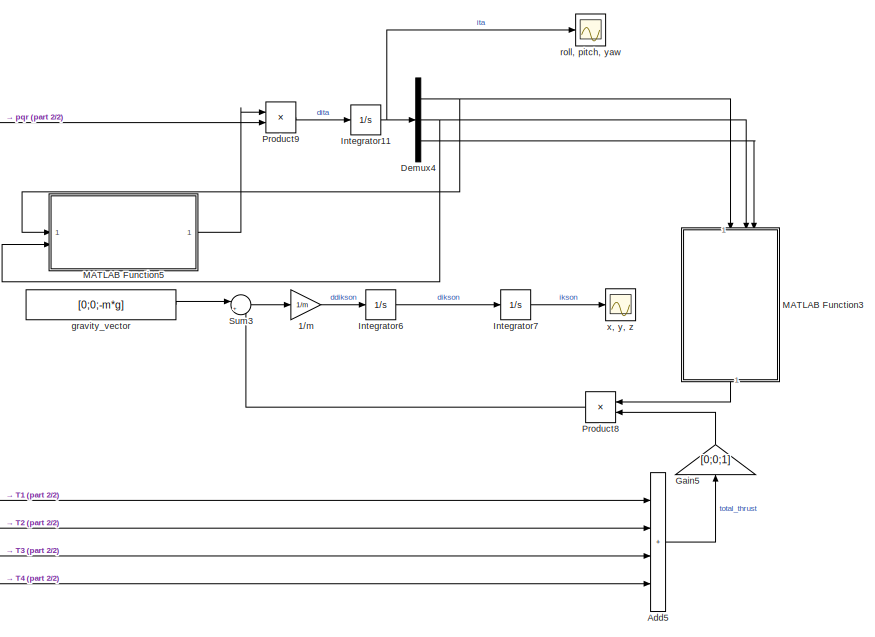
[diagram: root canvas - part 1/2, right side, full height]
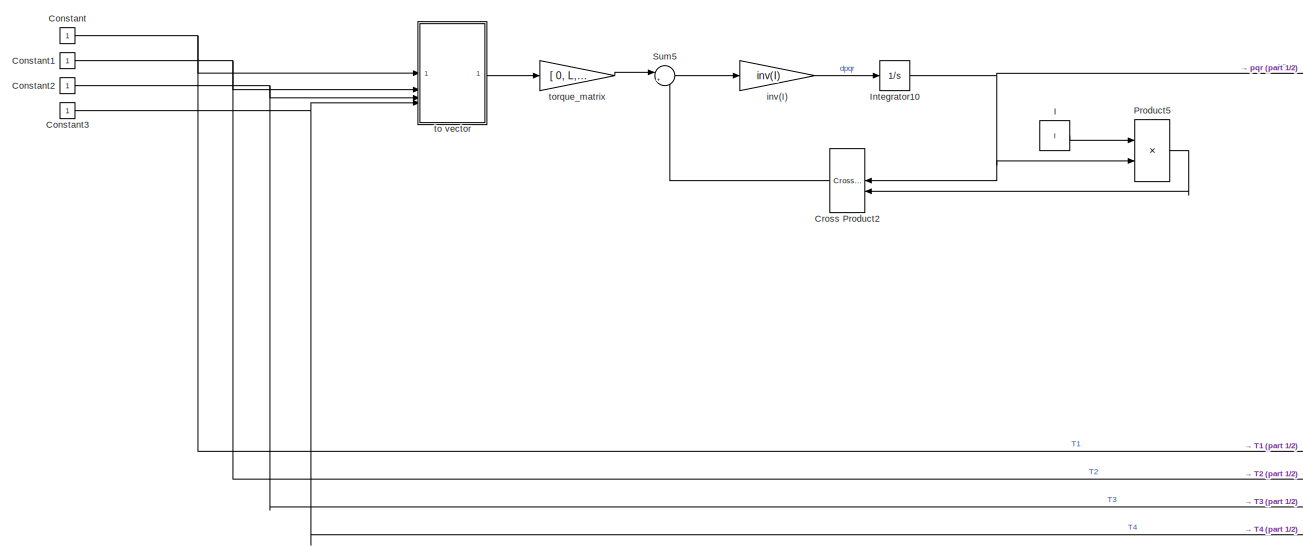
[diagram: root canvas - part 2/2, left side, full height]
MODEL slx_aa3438f0dcc6
KIND model
CONFIG AbsTol = auto
CONFIG EnableMultiTasking = off
CONFIG FixedStep = auto
CONFIG MaxStep = auto
CONFIG MinStep = auto
CONFIG RelTol = 1e-3
CONFIG SampleTimeConstraint = Unconstrained
CONFIG SolverName = VariableStepAuto
CONFIG StartTime = 0.0
CONFIG StopTime = 10
BLOCK [Gain] 1//m
  Gain = 1/m
BLOCK [Sum] Add5
  IconShape = rectangular
  Inputs = ++++
BLOCK [Constant] Constant
BLOCK [Constant] Constant1
BLOCK [Constant] Constant2
BLOCK [Constant] Constant3
BLOCK [Reference] Cross Product2  REF=vrlib/Utilities/Cross Product
  SourceBlock = vrlib/Utilities/Cross Product
  SourceType = Cross Product
BLOCK [Demux] Demux4
  Outputs = 3
BLOCK [Gain] Gain5
  Gain = [0;0;1]
  NameLocation = right
BLOCK [Constant] I
  NameLocation = top
  Value = I
BLOCK [Integrator] Integrator10
BLOCK [Integrator] Integrator11
BLOCK [Integrator] Integrator6
BLOCK [Integrator] Integrator7
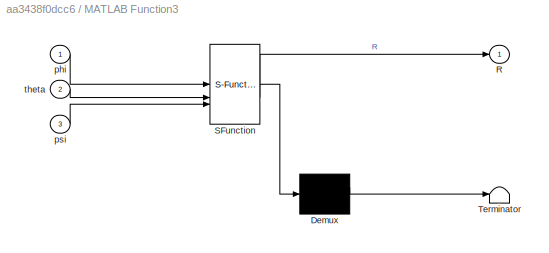
BLOCK [SubSystem] MATLAB Function3
  ErrorFcn = Stateflow.Translate.translate
  NameLocation = left
  PermitHierarchicalResolution = ExplicitOnly
  SFBlockType = MATLAB Function
  TreatAsAtomicUnit = on
BLOCK [Demux] MATLAB Function3/ Demux 
  Outputs = 1
BLOCK [S-Function] MATLAB Function3/ SFunction 
  EnableBusSupport = on
  FunctionName = sf_sfun
  PortCounts = [3 2]
  SFcnIsStateOwnerBlock = off
  SFunctionDeploymentMode = off
  Tag = Stateflow S-Function 4
BLOCK [Terminator] MATLAB Function3/ Terminator 
BLOCK [Outport] MATLAB Function3/R
BLOCK [Inport] MATLAB Function3/phi
BLOCK [Inport] MATLAB Function3/psi
  Port = 3
BLOCK [Inport] MATLAB Function3/theta
  Port = 2
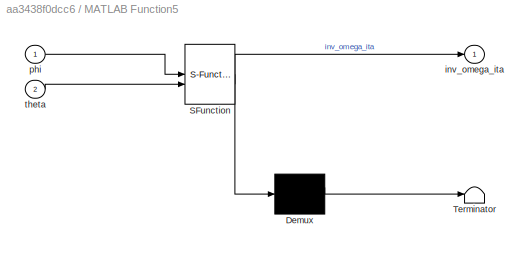
BLOCK [SubSystem] MATLAB Function5
  ErrorFcn = Stateflow.Translate.translate
  PermitHierarchicalResolution = ExplicitOnly
  SFBlockType = MATLAB Function
  TreatAsAtomicUnit = on
BLOCK [Demux] MATLAB Function5/ Demux 
  Outputs = 1
BLOCK [S-Function] MATLAB Function5/ SFunction 
  EnableBusSupport = on
  FunctionName = sf_sfun
  PortCounts = [2 2]
  SFcnIsStateOwnerBlock = off
  SFunctionDeploymentMode = off
  Tag = Stateflow S-Function 6
BLOCK [Terminator] MATLAB Function5/ Terminator 
BLOCK [Outport] MATLAB Function5/inv_omega_ita
BLOCK [Inport] MATLAB Function5/phi
BLOCK [Inport] MATLAB Function5/theta
  Port = 2
BLOCK [Product] Product5
  Multiplication = Matrix(*)
BLOCK [Product] Product8
  Multiplication = Matrix(*)
  NameLocation = top
BLOCK [Product] Product9
  Multiplication = Matrix(*)
BLOCK [Sum] Sum3
  Inputs = |++
BLOCK [Sum] Sum5
  Inputs = |+-
BLOCK [Constant] gravity_vector
  Value = [0;0;-m*g]
BLOCK [Gain] inv(I)
  Gain = inv(I)
  Multiplication = Matrix(K*u) (u vector)
BLOCK [Scope] roll, pitch, yaw
  Floating = off
  NumInputPorts = 1
  ScopeSpecificationString = Simulink.scopes.TimeScopeBlockCfg('CurrentConfiguration', extmgr.ConfigurationSet(extmgr.Configuration('Core','General UI',true),extmgr.Configuration('Core','Source UI',true),extmgr.Configuration('Sources','WiredSimulink',true,'DataLoggingVariableName','ScopeData2'),extmgr.Configuration('Visuals','Time Domain',true,'SerializedDisplays',{struct('MinYLimReal','-1.00000','MaxYLimReal','1.00000','YLab...<+1507ch>
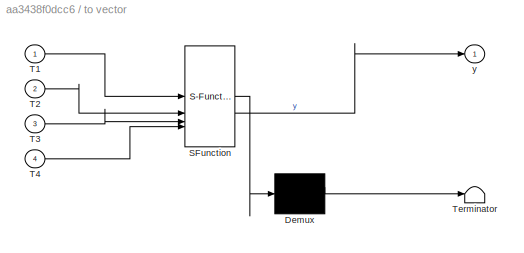
BLOCK [SubSystem] to vector
  ErrorFcn = Stateflow.Translate.translate
  PermitHierarchicalResolution = ExplicitOnly
  SFBlockType = MATLAB Function
  TreatAsAtomicUnit = on
BLOCK [Demux] to vector/ Demux 
  Outputs = 1
BLOCK [S-Function] to vector/ SFunction 
  EnableBusSupport = on
  FunctionName = sf_sfun
  PortCounts = [4 2]
  SFcnIsStateOwnerBlock = off
  SFunctionDeploymentMode = off
  Tag = Stateflow S-Function 2
BLOCK [Terminator] to vector/ Terminator 
BLOCK [Inport] to vector/T1
BLOCK [Inport] to vector/T2
  Port = 2
BLOCK [Inport] to vector/T3
  Port = 3
BLOCK [Inport] to vector/T4
  Port = 4
BLOCK [Outport] to vector/y
BLOCK [Gain] torque_matrix
  Gain = [ 0, L, 0, -L;  -L, 0,  L,  0; gamma,  -gamma,  gamma,  -gamma]
  Multiplication = Matrix(K*u) (u vector)
BLOCK [Scope] x, y, z
  Floating = off
  NumInputPorts = 1
  ScopeSpecificationString = Simulink.scopes.TimeScopeBlockCfg('CurrentConfiguration', extmgr.ConfigurationSet(extmgr.Configuration('Core','General UI',true),extmgr.Configuration('Core','Source UI',true),extmgr.Configuration('Sources','WiredSimulink',true,'DataLoggingVariableName','ScopeData1'),extmgr.Configuration('Visuals','Time Domain',true,'SerializedDisplays',{struct('MinYLimReal','-27.33698','MaxYLimReal','3.03744','YLa...<+1543ch>
LINE 1//m:1 -> Integrator6:1
LINE Add5:1 -> Gain5:1
NET Constant1:1 -> Add5:2, to vector:2
NET Constant2:1 -> Add5:3, to vector:3
NET Constant3:1 -> Add5:4, to vector:4
NET Constant:1 -> Add5:1, to vector:1
LINE Cross Product2:1 -> Sum5:2
NET Demux4:1 -> MATLAB Function3:1, MATLAB Function5:1
NET Demux4:2 -> MATLAB Function3:2, MATLAB Function5:2
LINE Demux4:3 -> MATLAB Function3:3
LINE Gain5:1 -> Product8:2
LINE I:1 -> Product5:1
NET Integrator10:1 -> Cross Product2:1, Product5:2, Product9:2
NET Integrator11:1 -> Demux4:1, roll, pitch, yaw:1
LINE Integrator6:1 -> Integrator7:1
LINE Integrator7:1 -> x, y, z:1
LINE MATLAB Function3:1 -> Product8:1
LINE MATLAB Function5:1 -> Product9:1
LINE Product5:1 -> Cross Product2:2
LINE Product8:1 -> Sum3:2
LINE Product9:1 -> Integrator11:1
LINE Sum3:1 -> 1//m:1
LINE Sum5:1 -> inv(I):1
LINE gravity_vector:1 -> Sum3:1
LINE inv(I):1 -> Integrator10:1
LINE to vector:1 -> torque_matrix:1
LINE torque_matrix:1 -> Sum5:1
note: NET lines group one-source signal fan-out (src -> all destinations, sorted); 1:1 wires keep LINE
CHART to vector states=1 transitions=1
  STATE_LABEL 'eML_blk_kernel()'
  STATE_LABEL 'SCRIPT:\nfunction y = fcn(T1,T2,T3,T4)\n\ny = [T1; T2; T3; T4];\n'
CHART MATLAB Function3 states=1 transitions=1
  STATE_LABEL 'eML_blk_kernel()'
  STATE_LABEL 'SCRIPT:\nfunction R = body2inertia(phi,theta,psi)\n\n\nmatrix = [ cos(psi)*cos(theta)   cos(psi)*sin(theta)*sin(phi) -  sin(psi)*cos(phi)   cos(psi)*sin(theta)*cos(phi) +  sin(psi)*sin(phi);\n           sin(psi)*cos(theta)   sin(psi)*sin(theta)*sin(phi) +  cos(psi)*cos(phi)   sin(psi)*sin(theta)*cos(phi) -  cos(psi)*sin(phi); \n           -sin(theta)           cos(theta)*sin(phi)                        ...<+47ch>'
CHART MATLAB Function5 states=1 transitions=1
  STATE_LABEL 'eML_blk_kernel()'
  STATE_LABEL 'SCRIPT:\nfunction inv_omega_ita = fcn(phi,theta)\n\n\nmatrix = [  1   sin(phi)*tan(theta) cos(phi)*tan(theta);\n            0   cos(phi)            -sin(phi);\n            0   sin(phi)/cos(theta) cos(phi)/cos(theta)  ];\n\n\n\ninv_omega_ita = matrix;\n'
CHART  states=0 transitions=0
CHART  states=0 transitions=0
CHART  states=0 transitions=0
